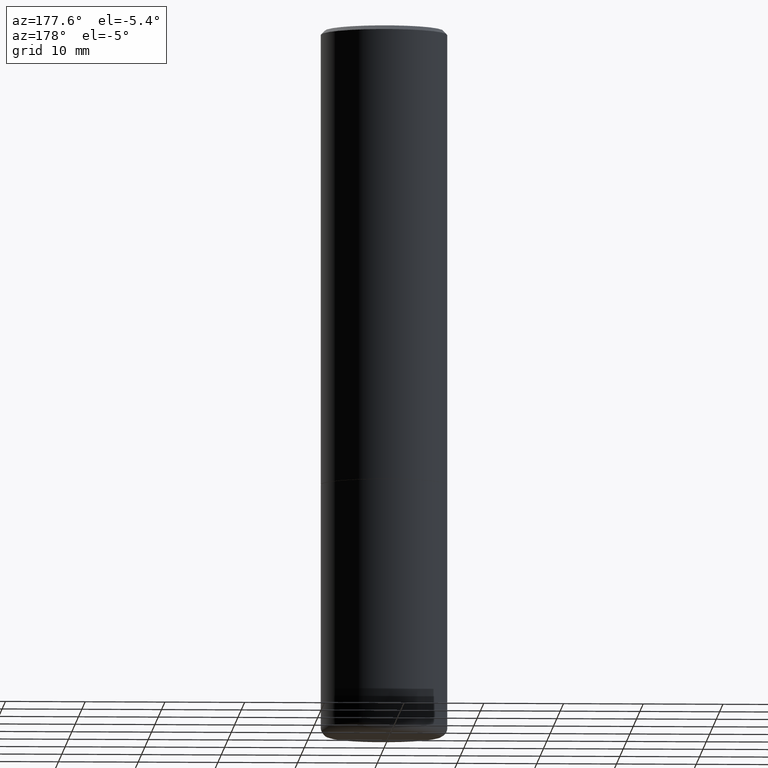
[diagram: clean part render]
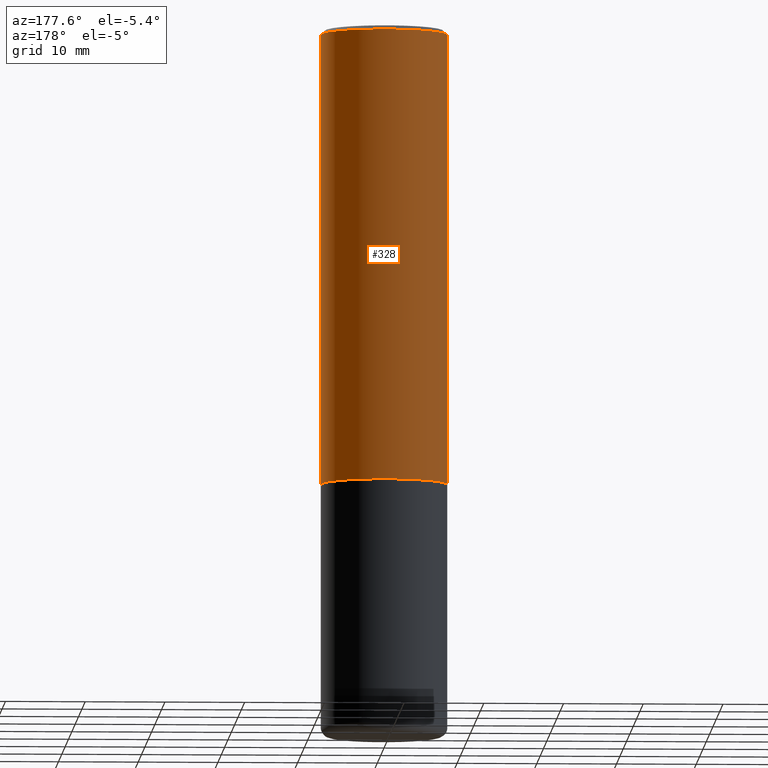
[diagram: same view with one face highlighted and labeled with its STEP entity id]
A machine part, auxiliary view. The second image highlights one B-rep face of the part: STEP entity #328.
In plain terms, the highlighted cylindrical surface (partial cylindrical patch) has radius 7.9375 mm, axis along (-0, 0, 1).
Its self-contained STEP definition (entity closure, byte-faithful):
#5 = EDGE_CURVE ( 'NONE', #110, #46, #421, .T. ) ;
#6 = VECTOR ( 'NONE', #290, 39.37007874015748143 ) ;
#12 = CYLINDRICAL_SURFACE ( 'NONE', #232, 0.3124999999999998890 ) ;
#18 = VECTOR ( 'NONE', #379, 39.37007874015748143 ) ;
#29 = CARTESIAN_POINT ( 'NONE',  ( 5.499859345110370619E-29, -7.852341531058232286E-15, -2.248999999999999222 ) ) ;
#39 = EDGE_LOOP ( 'NONE', ( #221, #48, #426, #223 ) ) ;
#41 = EDGE_CURVE ( 'NONE', #190, #110, #129, .T. ) ;
#46 = VERTEX_POINT ( 'NONE', #156 ) ;
#48 = ORIENTED_EDGE ( 'NONE', *, *, #172, .T. ) ;
#54 = CARTESIAN_POINT ( 'NONE',  ( 4.890937612370276662E-31, -6.982962677686296539E-17, -0.02000000000000001776 ) ) ;
#56 = DIRECTION ( 'NONE',  ( -2.445468806185136597E-29, 3.491481338843145583E-15, 1.000000000000000000 ) ) ;
#61 = DIRECTION ( 'NONE',  ( 1.000000000000000000, -6.982962677686266711E-15, 0.000000000000000000 ) ) ;
#62 = CARTESIAN_POINT ( 'NONE',  ( 0.3125000000000000000, -1.003451736783519063E-14, -2.248999999999999222 ) ) ;
#65 = AXIS2_PLACEMENT_3D ( 'NONE', #29, #310, #101 ) ;
#101 = DIRECTION ( 'NONE',  ( 1.000000000000000000, -6.982962677686269077E-15, 0.000000000000000000 ) ) ;
#105 = FACE_OUTER_BOUND ( 'NONE', #39, .T. ) ;
#110 = VERTEX_POINT ( 'NONE', #406 ) ;
#129 = LINE ( 'NONE', #299, #6 ) ;
#156 = CARTESIAN_POINT ( 'NONE',  ( -0.3124999999999998335, 2.112346210000093866E-15, -0.02000000000000001776 ) ) ;
#172 = EDGE_CURVE ( 'NONE', #367, #46, #200, .T. ) ;
#178 = EDGE_CURVE ( 'NONE', #190, #367, #333, .T. ) ;
#181 = CARTESIAN_POINT ( 'NONE',  ( 0.000000000000000000, 0.000000000000000000, 0.000000000000000000 ) ) ;
#190 = VERTEX_POINT ( 'NONE', #62 ) ;
#200 = LINE ( 'NONE', #207, #18 ) ;
#203 = AXIS2_PLACEMENT_3D ( 'NONE', #54, #56, #61 ) ;
#207 = CARTESIAN_POINT ( 'NONE',  ( -0.3124999999999998890, 2.220446049250312292E-15, -1.537167215704657391E-29 ) ) ;
#218 = DIRECTION ( 'NONE',  ( 1.000000000000000000, -6.982962677686266711E-15, 4.876176775795935232E-29 ) ) ;
#221 = ORIENTED_EDGE ( 'NONE', *, *, #178, .T. ) ;
#223 = ORIENTED_EDGE ( 'NONE', *, *, #41, .F. ) ;
#232 = AXIS2_PLACEMENT_3D ( 'NONE', #181, #243, #218 ) ;
#243 = DIRECTION ( 'NONE',  ( -2.445468806185136597E-29, 3.491481338843145583E-15, 1.000000000000000000 ) ) ;
#247 = CARTESIAN_POINT ( 'NONE',  ( -0.3125000000000000000, -1.740639529667232739E-15, -2.248999999999999222 ) ) ;
#290 = DIRECTION ( 'NONE',  ( -2.445468806185136877E-29, 3.491481338843145188E-15, 1.000000000000000000 ) ) ;
#299 = CARTESIAN_POINT ( 'NONE',  ( 0.3124999999999998890, -2.182175836776957558E-15, 1.523805242436229235E-29 ) ) ;
#310 = DIRECTION ( 'NONE',  ( -2.445468806185136597E-29, 3.491481338843145583E-15, 1.000000000000000000 ) ) ;
#328 = ADVANCED_FACE ( 'NONE', ( #105 ), #12, .T. ) ;
#333 = CIRCLE ( 'NONE', #65, 0.3125000000000000000 ) ;
#367 = VERTEX_POINT ( 'NONE', #247 ) ;
#379 = DIRECTION ( 'NONE',  ( -2.445468806185136877E-29, 3.491481338843145188E-15, 1.000000000000000000 ) ) ;
#406 = CARTESIAN_POINT ( 'NONE',  ( 0.3124999999999998335, -2.213735251080465334E-15, -0.02000000000000001776 ) ) ;
#421 = CIRCLE ( 'NONE', #203, 0.3124999999999998335 ) ;
#426 = ORIENTED_EDGE ( 'NONE', *, *, #5, .F. ) ;